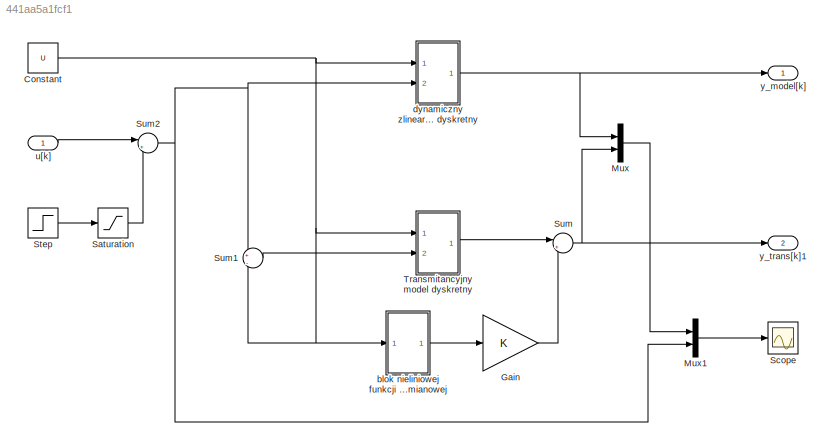
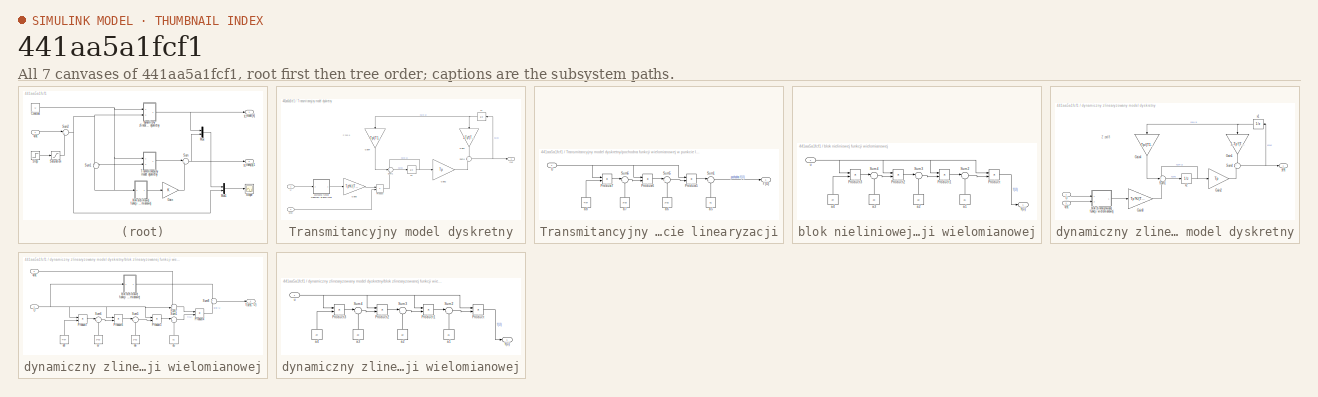
[diagram: thumbnail index - all 7 canvases of the model, root first then tree order]
MODEL slx_441aa5a1fcf1
KIND model
BLOCK [Constant] Constant
  Value = U
BLOCK [Gain] Gain
  Gain = K
  OutDataTypeStr = Inherit: Inherit via internal rule
  ParamDataTypeStr = Inherit: Inherit via internal rule
  SaturateOnIntegerOverflow = off
BLOCK [Mux] Mux
  DisplayOption = bar
  Inputs = 2
  Ports = [2, 1]
BLOCK [Mux] Mux1
  DisplayOption = bar
  Inputs = 2
  Ports = [2, 1]
BLOCK [Saturate] Saturation
  InputPortMap = u0
  LowerLimit = -1
  Ports = [1, 1]
  UpperLimit = 1
BLOCK [Scope] Scope
  Floating = off
  NumInputPorts = 1
  Ports = [1]
  ShowLegends = off
  YMax = 7
  YMin = 0
  ZoomMode = yonly
BLOCK [Step] Step
  After = U
  SampleTime = 0
  Time = 250
BLOCK [Sum] Sum
  IconShape = round
  InputSameDT = off
  Inputs = |++
  OutDataTypeStr = Inherit: Inherit via internal rule
  Ports = [2, 1]
  SaturateOnIntegerOverflow = off
BLOCK [Sum] Sum1
  IconShape = round
  InputSameDT = off
  Inputs = +|-
  OutDataTypeStr = Inherit: Inherit via internal rule
  Ports = [2, 1]
  SaturateOnIntegerOverflow = off
BLOCK [Sum] Sum2
  IconShape = round
  InputSameDT = off
  Inputs = |++
  OutDataTypeStr = Inherit: Inherit via internal rule
  Ports = [2, 1]
  SaturateOnIntegerOverflow = off
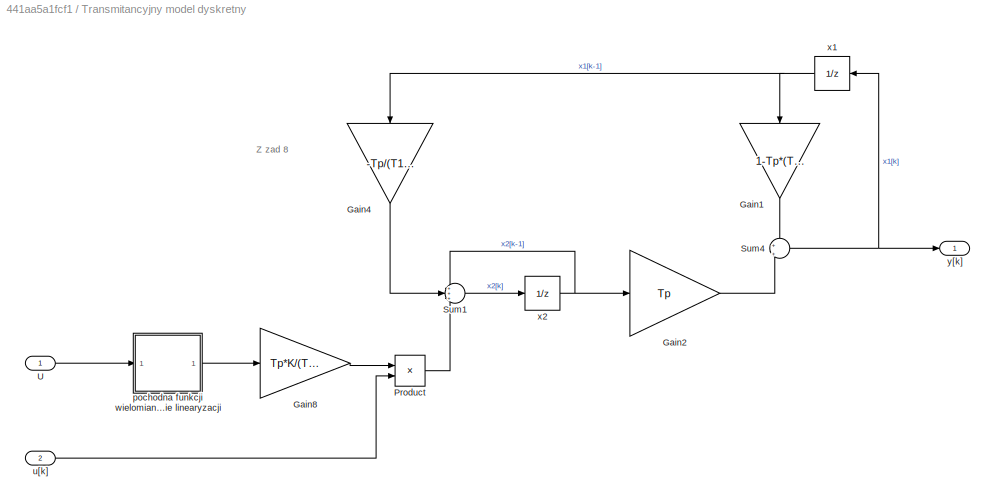
BLOCK [SubSystem] Transmitancyjny model dyskretny
  Ports = [2, 1]
  RequestExecContextInheritance = off
BLOCK [Gain] Transmitancyjny model dyskretny/Gain1
  Gain = 1-Tp*(T1+T2)/(T1*T2)
  OutDataTypeStr = Inherit: Inherit via internal rule
  ParamDataTypeStr = Inherit: Inherit via internal rule
  SaturateOnIntegerOverflow = off
BLOCK [Gain] Transmitancyjny model dyskretny/Gain2
  Gain = Tp
  OutDataTypeStr = Inherit: Inherit via internal rule
  ParamDataTypeStr = Inherit: Inherit via internal rule
  SaturateOnIntegerOverflow = off
BLOCK [Gain] Transmitancyjny model dyskretny/Gain4
  Gain = -Tp/(T1*T2)
  OutDataTypeStr = Inherit: Inherit via internal rule
  ParamDataTypeStr = Inherit: Inherit via internal rule
  SaturateOnIntegerOverflow = off
BLOCK [Gain] Transmitancyjny model dyskretny/Gain8
  Gain = Tp*K/(T1*T2)
  OutDataTypeStr = Inherit: Inherit via internal rule
  ParamDataTypeStr = Inherit: Inherit via internal rule
  SaturateOnIntegerOverflow = off
BLOCK [Product] Transmitancyjny model dyskretny/Product
  InputSameDT = off
  OutDataTypeStr = Inherit: Inherit via internal rule
  Ports = [2, 1]
  RndMeth = Floor
  SaturateOnIntegerOverflow = off
BLOCK [Sum] Transmitancyjny model dyskretny/Sum1
  IconShape = round
  InputSameDT = off
  Inputs = +++
  OutDataTypeStr = Inherit: Inherit via internal rule
  Ports = [3, 1]
  SaturateOnIntegerOverflow = off
BLOCK [Sum] Transmitancyjny model dyskretny/Sum4
  IconShape = round
  InputSameDT = off
  Inputs = +|+
  OutDataTypeStr = Inherit: Inherit via internal rule
  Ports = [2, 1]
  SaturateOnIntegerOverflow = off
BLOCK [Inport] Transmitancyjny model dyskretny/U
  IconDisplay = Port number
BLOCK [SubSystem] Transmitancyjny model dyskretny/pochodna funkcji wielomianowej w punkcie linearyzacji
  Ports = [1, 1]
  RequestExecContextInheritance = off
BLOCK [Product] Transmitancyjny model dyskretny/pochodna funkcji wielomianowej w punkcie linearyzacji/Product5
  InputSameDT = off
  OutDataTypeStr = Inherit: Inherit via internal rule
  Ports = [2, 1]
  RndMeth = Floor
  SaturateOnIntegerOverflow = off
BLOCK [Product] Transmitancyjny model dyskretny/pochodna funkcji wielomianowej w punkcie linearyzacji/Product6
  InputSameDT = off
  OutDataTypeStr = Inherit: Inherit via internal rule
  Ports = [2, 1]
  RndMeth = Floor
  SaturateOnIntegerOverflow = off
BLOCK [Product] Transmitancyjny model dyskretny/pochodna funkcji wielomianowej w punkcie linearyzacji/Product7
  InputSameDT = off
  OutDataTypeStr = Inherit: Inherit via internal rule
  Ports = [2, 1]
  RndMeth = Floor
  SaturateOnIntegerOverflow = off
BLOCK [Sum] Transmitancyjny model dyskretny/pochodna funkcji wielomianowej w punkcie linearyzacji/Sum1
  IconShape = round
  InputSameDT = off
  Inputs = |++
  OutDataTypeStr = Inherit: Inherit via internal rule
  Ports = [2, 1]
  SaturateOnIntegerOverflow = off
BLOCK [Sum] Transmitancyjny model dyskretny/pochodna funkcji wielomianowej w punkcie linearyzacji/Sum5
  IconShape = round
  InputSameDT = off
  Inputs = |++
  OutDataTypeStr = Inherit: Inherit via internal rule
  Ports = [2, 1]
  SaturateOnIntegerOverflow = off
BLOCK [Sum] Transmitancyjny model dyskretny/pochodna funkcji wielomianowej w punkcie linearyzacji/Sum6
  IconShape = round
  InputSameDT = off
  Inputs = |++
  OutDataTypeStr = Inherit: Inherit via internal rule
  Ports = [2, 1]
  SaturateOnIntegerOverflow = off
BLOCK [Inport] Transmitancyjny model dyskretny/pochodna funkcji wielomianowej w punkcie linearyzacji/U
  IconDisplay = Port number
BLOCK [Constant] Transmitancyjny model dyskretny/pochodna funkcji wielomianowej w punkcie linearyzacji/a5
  Value = a1
BLOCK [Constant] Transmitancyjny model dyskretny/pochodna funkcji wielomianowej w punkcie linearyzacji/a6
  Value = 2*a2
BLOCK [Constant] Transmitancyjny model dyskretny/pochodna funkcji wielomianowej w punkcie linearyzacji/a7
  Value = 3*a3
BLOCK [Constant] Transmitancyjny model dyskretny/pochodna funkcji wielomianowej w punkcie linearyzacji/a8
  Value = 4*a4
BLOCK [Outport] Transmitancyjny model dyskretny/pochodna funkcji wielomianowej w punkcie linearyzacji/f'(U)
  IconDisplay = Port number
BLOCK [Inport] Transmitancyjny model dyskretny/u[k]
  IconDisplay = Port number
  Port = 2
BLOCK [UnitDelay] Transmitancyjny model dyskretny/x1
  InitialCondition = x0(1)
  InputProcessing = Elements as channels (sample based)
  SampleTime = Tp
BLOCK [UnitDelay] Transmitancyjny model dyskretny/x2
  InitialCondition = x0(2)
  InputProcessing = Elements as channels (sample based)
  SampleTime = Tp
BLOCK [Outport] Transmitancyjny model dyskretny/y[k]
  IconDisplay = Port number
BLOCK [SubSystem] blok nieliniowej funkcji wielomianowej
  Ports = [1, 1]
  RequestExecContextInheritance = off
BLOCK [Product] blok nieliniowej funkcji wielomianowej/Product
  InputSameDT = off
  OutDataTypeStr = Inherit: Inherit via internal rule
  Ports = [2, 1]
  RndMeth = Floor
  SaturateOnIntegerOverflow = off
BLOCK [Product] blok nieliniowej funkcji wielomianowej/Product1
  InputSameDT = off
  OutDataTypeStr = Inherit: Inherit via internal rule
  Ports = [2, 1]
  RndMeth = Floor
  SaturateOnIntegerOverflow = off
BLOCK [Product] blok nieliniowej funkcji wielomianowej/Product2
  InputSameDT = off
  OutDataTypeStr = Inherit: Inherit via internal rule
  Ports = [2, 1]
  RndMeth = Floor
  SaturateOnIntegerOverflow = off
BLOCK [Product] blok nieliniowej funkcji wielomianowej/Product3
  InputSameDT = off
  OutDataTypeStr = Inherit: Inherit via internal rule
  Ports = [2, 1]
  RndMeth = Floor
  SaturateOnIntegerOverflow = off
BLOCK [Sum] blok nieliniowej funkcji wielomianowej/Sum2
  IconShape = round
  InputSameDT = off
  Inputs = |++
  OutDataTypeStr = Inherit: Inherit via internal rule
  Ports = [2, 1]
  SaturateOnIntegerOverflow = off
BLOCK [Sum] blok nieliniowej funkcji wielomianowej/Sum3
  IconShape = round
  InputSameDT = off
  Inputs = |++
  OutDataTypeStr = Inherit: Inherit via internal rule
  Ports = [2, 1]
  SaturateOnIntegerOverflow = off
BLOCK [Sum] blok nieliniowej funkcji wielomianowej/Sum4
  IconShape = round
  InputSameDT = off
  Inputs = |++
  OutDataTypeStr = Inherit: Inherit via internal rule
  Ports = [2, 1]
  SaturateOnIntegerOverflow = off
BLOCK [Constant] blok nieliniowej funkcji wielomianowej/a1
  Value = a1
BLOCK [Constant] blok nieliniowej funkcji wielomianowej/a2
  Value = a2
BLOCK [Constant] blok nieliniowej funkcji wielomianowej/a3
  Value = a3
BLOCK [Constant] blok nieliniowej funkcji wielomianowej/a4
  Value = a4
BLOCK [Outport] blok nieliniowej funkcji wielomianowej/f(u)
  IconDisplay = Port number
BLOCK [Inport] blok nieliniowej funkcji wielomianowej/u
  IconDisplay = Port number
BLOCK [SubSystem] dynamiczny zlinearyzowany model dyskretny
  Ports = [2, 1]
  RequestExecContextInheritance = off
BLOCK [Gain] dynamiczny zlinearyzowany model dyskretny/Gain1
  Gain = 1-Tp*(T1+T2)/(T1*T2)
  OutDataTypeStr = Inherit: Inherit via internal rule
  ParamDataTypeStr = Inherit: Inherit via internal rule
  SaturateOnIntegerOverflow = off
BLOCK [Gain] dynamiczny zlinearyzowany model dyskretny/Gain2
  Gain = Tp
  OutDataTypeStr = Inherit: Inherit via internal rule
  ParamDataTypeStr = Inherit: Inherit via internal rule
  SaturateOnIntegerOverflow = off
BLOCK [Gain] dynamiczny zlinearyzowany model dyskretny/Gain4
  Gain = -Tp/(T1*T2)
  OutDataTypeStr = Inherit: Inherit via internal rule
  ParamDataTypeStr = Inherit: Inherit via internal rule
  SaturateOnIntegerOverflow = off
BLOCK [Gain] dynamiczny zlinearyzowany model dyskretny/Gain8
  Gain = Tp*K/(T1*T2)
  OutDataTypeStr = Inherit: Inherit via internal rule
  ParamDataTypeStr = Inherit: Inherit via internal rule
  SaturateOnIntegerOverflow = off
BLOCK [Sum] dynamiczny zlinearyzowany model dyskretny/Sum1
  IconShape = round
  InputSameDT = off
  Inputs = +++
  OutDataTypeStr = Inherit: Inherit via internal rule
  Ports = [3, 1]
  SaturateOnIntegerOverflow = off
BLOCK [Sum] dynamiczny zlinearyzowany model dyskretny/Sum4
  IconShape = round
  InputSameDT = off
  Inputs = +|+
  OutDataTypeStr = Inherit: Inherit via internal rule
  Ports = [2, 1]
  SaturateOnIntegerOverflow = off
BLOCK [Inport] dynamiczny zlinearyzowany model dyskretny/U
  IconDisplay = Port number
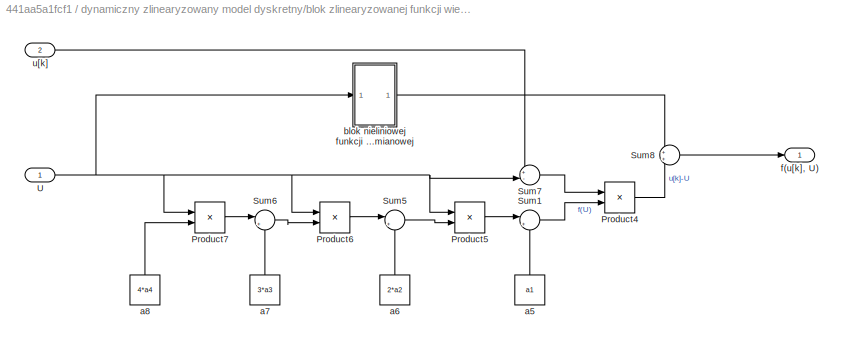
BLOCK [SubSystem] dynamiczny zlinearyzowany model dyskretny/blok zlinearyzowanej funkcji wielomianowej
  Ports = [2, 1]
  RequestExecContextInheritance = off
BLOCK [Product] dynamiczny zlinearyzowany model dyskretny/blok zlinearyzowanej funkcji wielomianowej/Product4
  InputSameDT = off
  OutDataTypeStr = Inherit: Inherit via internal rule
  Ports = [2, 1]
  RndMeth = Floor
  SaturateOnIntegerOverflow = off
BLOCK [Product] dynamiczny zlinearyzowany model dyskretny/blok zlinearyzowanej funkcji wielomianowej/Product5
  InputSameDT = off
  OutDataTypeStr = Inherit: Inherit via internal rule
  Ports = [2, 1]
  RndMeth = Floor
  SaturateOnIntegerOverflow = off
BLOCK [Product] dynamiczny zlinearyzowany model dyskretny/blok zlinearyzowanej funkcji wielomianowej/Product6
  InputSameDT = off
  OutDataTypeStr = Inherit: Inherit via internal rule
  Ports = [2, 1]
  RndMeth = Floor
  SaturateOnIntegerOverflow = off
BLOCK [Product] dynamiczny zlinearyzowany model dyskretny/blok zlinearyzowanej funkcji wielomianowej/Product7
  InputSameDT = off
  OutDataTypeStr = Inherit: Inherit via internal rule
  Ports = [2, 1]
  RndMeth = Floor
  SaturateOnIntegerOverflow = off
BLOCK [Sum] dynamiczny zlinearyzowany model dyskretny/blok zlinearyzowanej funkcji wielomianowej/Sum1
  IconShape = round
  InputSameDT = off
  Inputs = |++
  OutDataTypeStr = Inherit: Inherit via internal rule
  Ports = [2, 1]
  SaturateOnIntegerOverflow = off
BLOCK [Sum] dynamiczny zlinearyzowany model dyskretny/blok zlinearyzowanej funkcji wielomianowej/Sum5
  IconShape = round
  InputSameDT = off
  Inputs = |++
  OutDataTypeStr = Inherit: Inherit via internal rule
  Ports = [2, 1]
  SaturateOnIntegerOverflow = off
BLOCK [Sum] dynamiczny zlinearyzowany model dyskretny/blok zlinearyzowanej funkcji wielomianowej/Sum6
  IconShape = round
  InputSameDT = off
  Inputs = |++
  OutDataTypeStr = Inherit: Inherit via internal rule
  Ports = [2, 1]
  SaturateOnIntegerOverflow = off
BLOCK [Sum] dynamiczny zlinearyzowany model dyskretny/blok zlinearyzowanej funkcji wielomianowej/Sum7
  IconShape = round
  InputSameDT = off
  Inputs = +-|
  OutDataTypeStr = Inherit: Inherit via internal rule
  Ports = [2, 1]
  SaturateOnIntegerOverflow = off
BLOCK [Sum] dynamiczny zlinearyzowany model dyskretny/blok zlinearyzowanej funkcji wielomianowej/Sum8
  IconShape = round
  InputSameDT = off
  OutDataTypeStr = Inherit: Inherit via internal rule
  Ports = [2, 1]
  SaturateOnIntegerOverflow = off
BLOCK [Inport] dynamiczny zlinearyzowany model dyskretny/blok zlinearyzowanej funkcji wielomianowej/U
  IconDisplay = Port number
BLOCK [Constant] dynamiczny zlinearyzowany model dyskretny/blok zlinearyzowanej funkcji wielomianowej/a5
  Value = a1
BLOCK [Constant] dynamiczny zlinearyzowany model dyskretny/blok zlinearyzowanej funkcji wielomianowej/a6
  Value = 2*a2
BLOCK [Constant] dynamiczny zlinearyzowany model dyskretny/blok zlinearyzowanej funkcji wielomianowej/a7
  Value = 3*a3
BLOCK [Constant] dynamiczny zlinearyzowany model dyskretny/blok zlinearyzowanej funkcji wielomianowej/a8
  Value = 4*a4
BLOCK [SubSystem] dynamiczny zlinearyzowany model dyskretny/blok zlinearyzowanej funkcji wielomianowej/blok nieliniowej funkcji wielomianowej
  Ports = [1, 1]
  RequestExecContextInheritance = off
BLOCK [Product] dynamiczny zlinearyzowany model dyskretny/blok zlinearyzowanej funkcji wielomianowej/blok nieliniowej funkcji wielomianowej/Product
  InputSameDT = off
  OutDataTypeStr = Inherit: Inherit via internal rule
  Ports = [2, 1]
  RndMeth = Floor
  SaturateOnIntegerOverflow = off
BLOCK [Product] dynamiczny zlinearyzowany model dyskretny/blok zlinearyzowanej funkcji wielomianowej/blok nieliniowej funkcji wielomianowej/Product1
  InputSameDT = off
  OutDataTypeStr = Inherit: Inherit via internal rule
  Ports = [2, 1]
  RndMeth = Floor
  SaturateOnIntegerOverflow = off
BLOCK [Product] dynamiczny zlinearyzowany model dyskretny/blok zlinearyzowanej funkcji wielomianowej/blok nieliniowej funkcji wielomianowej/Product2
  InputSameDT = off
  OutDataTypeStr = Inherit: Inherit via internal rule
  Ports = [2, 1]
  RndMeth = Floor
  SaturateOnIntegerOverflow = off
BLOCK [Product] dynamiczny zlinearyzowany model dyskretny/blok zlinearyzowanej funkcji wielomianowej/blok nieliniowej funkcji wielomianowej/Product3
  InputSameDT = off
  OutDataTypeStr = Inherit: Inherit via internal rule
  Ports = [2, 1]
  RndMeth = Floor
  SaturateOnIntegerOverflow = off
BLOCK [Sum] dynamiczny zlinearyzowany model dyskretny/blok zlinearyzowanej funkcji wielomianowej/blok nieliniowej funkcji wielomianowej/Sum2
  IconShape = round
  InputSameDT = off
  Inputs = |++
  OutDataTypeStr = Inherit: Inherit via internal rule
  Ports = [2, 1]
  SaturateOnIntegerOverflow = off
BLOCK [Sum] dynamiczny zlinearyzowany model dyskretny/blok zlinearyzowanej funkcji wielomianowej/blok nieliniowej funkcji wielomianowej/Sum3
  IconShape = round
  InputSameDT = off
  Inputs = |++
  OutDataTypeStr = Inherit: Inherit via internal rule
  Ports = [2, 1]
  SaturateOnIntegerOverflow = off
BLOCK [Sum] dynamiczny zlinearyzowany model dyskretny/blok zlinearyzowanej funkcji wielomianowej/blok nieliniowej funkcji wielomianowej/Sum4
  IconShape = round
  InputSameDT = off
  Inputs = |++
  OutDataTypeStr = Inherit: Inherit via internal rule
  Ports = [2, 1]
  SaturateOnIntegerOverflow = off
BLOCK [Constant] dynamiczny zlinearyzowany model dyskretny/blok zlinearyzowanej funkcji wielomianowej/blok nieliniowej funkcji wielomianowej/a1
  Value = a1
BLOCK [Constant] dynamiczny zlinearyzowany model dyskretny/blok zlinearyzowanej funkcji wielomianowej/blok nieliniowej funkcji wielomianowej/a2
  Value = a2
BLOCK [Constant] dynamiczny zlinearyzowany model dyskretny/blok zlinearyzowanej funkcji wielomianowej/blok nieliniowej funkcji wielomianowej/a3
  Value = a3
BLOCK [Constant] dynamiczny zlinearyzowany model dyskretny/blok zlinearyzowanej funkcji wielomianowej/blok nieliniowej funkcji wielomianowej/a4
  Value = a4
BLOCK [Outport] dynamiczny zlinearyzowany model dyskretny/blok zlinearyzowanej funkcji wielomianowej/blok nieliniowej funkcji wielomianowej/f(u)
  IconDisplay = Port number
BLOCK [Inport] dynamiczny zlinearyzowany model dyskretny/blok zlinearyzowanej funkcji wielomianowej/blok nieliniowej funkcji wielomianowej/u
  IconDisplay = Port number
BLOCK [Outport] dynamiczny zlinearyzowany model dyskretny/blok zlinearyzowanej funkcji wielomianowej/f(u[k], U)
  IconDisplay = Port number
BLOCK [Inport] dynamiczny zlinearyzowany model dyskretny/blok zlinearyzowanej funkcji wielomianowej/u[k]
  IconDisplay = Port number
  Port = 2
BLOCK [Inport] dynamiczny zlinearyzowany model dyskretny/u[k]
  IconDisplay = Port number
  Port = 2
BLOCK [UnitDelay] dynamiczny zlinearyzowany model dyskretny/x1
  InitialCondition = x0(1)
  InputProcessing = Elements as channels (sample based)
  SampleTime = Tp
BLOCK [UnitDelay] dynamiczny zlinearyzowany model dyskretny/x2
  InitialCondition = x0(2)
  InputProcessing = Elements as channels (sample based)
  SampleTime = Tp
BLOCK [Outport] dynamiczny zlinearyzowany model dyskretny/y[k]
  IconDisplay = Port number
BLOCK [Inport] u[k]
  IconDisplay = Port number
BLOCK [Outport] y_model[k]
  IconDisplay = Port number
BLOCK [Outport] y_trans[k]1
  IconDisplay = Port number
  Port = 2
ANNOTATION Transmitancyjny model dyskretny: Z zad 8
ANNOTATION dynamiczny zlinearyzowany model dyskretny: Z zad 8
NET Constant:1 -> Sum1:2, Transmitancyjny model dyskretny:1, blok nieliniowej funkcji wielomianowej:1, dynamiczny zlinearyzowany model dyskretny:1
LINE Gain:1 -> Sum:2
LINE Mux1:1 -> Scope:1
LINE Mux:1 -> Mux1:1
LINE Saturation:1 -> Sum2:2
LINE Step:1 -> Saturation:1
LINE Sum1:1 -> Transmitancyjny model dyskretny:2
NET Sum2:1 -> Mux1:2, Sum1:1, dynamiczny zlinearyzowany model dyskretny:2
NET Sum:1 -> Mux:2, y_trans[k]1:1
LINE Transmitancyjny model dyskretny/Gain1:1 -> Transmitancyjny model dyskretny/Sum4:1
LINE Transmitancyjny model dyskretny/Gain2:1 -> Transmitancyjny model dyskretny/Sum4:2
LINE Transmitancyjny model dyskretny/Gain4:1 -> Transmitancyjny model dyskretny/Sum1:2
LINE Transmitancyjny model dyskretny/Gain8:1 -> Transmitancyjny model dyskretny/Product:1
LINE Transmitancyjny model dyskretny/Product:1 -> Transmitancyjny model dyskretny/Sum1:3
LINE Transmitancyjny model dyskretny/Sum1:1 -> Transmitancyjny model dyskretny/x2:1
NET Transmitancyjny model dyskretny/Sum4:1 -> Transmitancyjny model dyskretny/x1:1, Transmitancyjny model dyskretny/y[k]:1
LINE Transmitancyjny model dyskretny/U:1 -> Transmitancyjny model dyskretny/pochodna funkcji wielomianowej w punkcie linearyzacji:1
LINE Transmitancyjny model dyskretny/pochodna funkcji wielomianowej w punkcie linearyzacji/Product5:1 -> Transmitancyjny model dyskretny/pochodna funkcji wielomianowej w punkcie linearyzacji/Sum1:1
LINE Transmitancyjny model dyskretny/pochodna funkcji wielomianowej w punkcie linearyzacji/Product6:1 -> Transmitancyjny model dyskretny/pochodna funkcji wielomianowej w punkcie linearyzacji/Sum5:1
LINE Transmitancyjny model dyskretny/pochodna funkcji wielomianowej w punkcie linearyzacji/Product7:1 -> Transmitancyjny model dyskretny/pochodna funkcji wielomianowej w punkcie linearyzacji/Sum6:1
LINE Transmitancyjny model dyskretny/pochodna funkcji wielomianowej w punkcie linearyzacji/Sum1:1 -> Transmitancyjny model dyskretny/pochodna funkcji wielomianowej w punkcie linearyzacji/f'(U):1
LINE Transmitancyjny model dyskretny/pochodna funkcji wielomianowej w punkcie linearyzacji/Sum5:1 -> Transmitancyjny model dyskretny/pochodna funkcji wielomianowej w punkcie linearyzacji/Product5:2
LINE Transmitancyjny model dyskretny/pochodna funkcji wielomianowej w punkcie linearyzacji/Sum6:1 -> Transmitancyjny model dyskretny/pochodna funkcji wielomianowej w punkcie linearyzacji/Product6:2
NET Transmitancyjny model dyskretny/pochodna funkcji wielomianowej w punkcie linearyzacji/U:1 -> Transmitancyjny model dyskretny/pochodna funkcji wielomianowej w punkcie linearyzacji/Product5:1, Transmitancyjny model dyskretny/pochodna funkcji wielomianowej w punkcie linearyzacji/Product6:1, Transmitancyjny model dyskretny/pochodna funkcji wielomianowej w punkcie linearyzacji/Product7:1
LINE Transmitancyjny model dyskretny/pochodna funkcji wielomianowej w punkcie linearyzacji/a5:1 -> Transmitancyjny model dyskretny/pochodna funkcji wielomianowej w punkcie linearyzacji/Sum1:2
LINE Transmitancyjny model dyskretny/pochodna funkcji wielomianowej w punkcie linearyzacji/a6:1 -> Transmitancyjny model dyskretny/pochodna funkcji wielomianowej w punkcie linearyzacji/Sum5:2
LINE Transmitancyjny model dyskretny/pochodna funkcji wielomianowej w punkcie linearyzacji/a7:1 -> Transmitancyjny model dyskretny/pochodna funkcji wielomianowej w punkcie linearyzacji/Sum6:2
LINE Transmitancyjny model dyskretny/pochodna funkcji wielomianowej w punkcie linearyzacji/a8:1 -> Transmitancyjny model dyskretny/pochodna funkcji wielomianowej w punkcie linearyzacji/Product7:2
LINE Transmitancyjny model dyskretny/pochodna funkcji wielomianowej w punkcie linearyzacji:1 -> Transmitancyjny model dyskretny/Gain8:1
LINE Transmitancyjny model dyskretny/u[k]:1 -> Transmitancyjny model dyskretny/Product:2
NET Transmitancyjny model dyskretny/x1:1 -> Transmitancyjny model dyskretny/Gain1:1, Transmitancyjny model dyskretny/Gain4:1
NET Transmitancyjny model dyskretny/x2:1 -> Transmitancyjny model dyskretny/Gain2:1, Transmitancyjny model dyskretny/Sum1:1
LINE Transmitancyjny model dyskretny:1 -> Sum:1
LINE blok nieliniowej funkcji wielomianowej/Product1:1 -> blok nieliniowej funkcji wielomianowej/Sum2:1
LINE blok nieliniowej funkcji wielomianowej/Product2:1 -> blok nieliniowej funkcji wielomianowej/Sum3:1
LINE blok nieliniowej funkcji wielomianowej/Product3:1 -> blok nieliniowej funkcji wielomianowej/Sum4:1
LINE blok nieliniowej funkcji wielomianowej/Product:1 -> blok nieliniowej funkcji wielomianowej/f(u):1
LINE blok nieliniowej funkcji wielomianowej/Sum2:1 -> blok nieliniowej funkcji wielomianowej/Product:2
LINE blok nieliniowej funkcji wielomianowej/Sum3:1 -> blok nieliniowej funkcji wielomianowej/Product1:2
LINE blok nieliniowej funkcji wielomianowej/Sum4:1 -> blok nieliniowej funkcji wielomianowej/Product2:2
LINE blok nieliniowej funkcji wielomianowej/a1:1 -> blok nieliniowej funkcji wielomianowej/Sum2:2
LINE blok nieliniowej funkcji wielomianowej/a2:1 -> blok nieliniowej funkcji wielomianowej/Sum3:2
LINE blok nieliniowej funkcji wielomianowej/a3:1 -> blok nieliniowej funkcji wielomianowej/Sum4:2
LINE blok nieliniowej funkcji wielomianowej/a4:1 -> blok nieliniowej funkcji wielomianowej/Product3:2
NET blok nieliniowej funkcji wielomianowej/u:1 -> blok nieliniowej funkcji wielomianowej/Product1:1, blok nieliniowej funkcji wielomianowej/Product2:1, blok nieliniowej funkcji wielomianowej/Product3:1, blok nieliniowej funkcji wielomianowej/Product:1
LINE blok nieliniowej funkcji wielomianowej:1 -> Gain:1
LINE dynamiczny zlinearyzowany model dyskretny/Gain1:1 -> dynamiczny zlinearyzowany model dyskretny/Sum4:1
LINE dynamiczny zlinearyzowany model dyskretny/Gain2:1 -> dynamiczny zlinearyzowany model dyskretny/Sum4:2
LINE dynamiczny zlinearyzowany model dyskretny/Gain4:1 -> dynamiczny zlinearyzowany model dyskretny/Sum1:2
LINE dynamiczny zlinearyzowany model dyskretny/Gain8:1 -> dynamiczny zlinearyzowany model dyskretny/Sum1:3
LINE dynamiczny zlinearyzowany model dyskretny/Sum1:1 -> dynamiczny zlinearyzowany model dyskretny/x2:1
NET dynamiczny zlinearyzowany model dyskretny/Sum4:1 -> dynamiczny zlinearyzowany model dyskretny/x1:1, dynamiczny zlinearyzowany model dyskretny/y[k]:1
LINE dynamiczny zlinearyzowany model dyskretny/U:1 -> dynamiczny zlinearyzowany model dyskretny/blok zlinearyzowanej funkcji wielomianowej:1
LINE dynamiczny zlinearyzowany model dyskretny/blok zlinearyzowanej funkcji wielomianowej/Product4:1 -> dynamiczny zlinearyzowany model dyskretny/blok zlinearyzowanej funkcji wielomianowej/Sum8:2
LINE dynamiczny zlinearyzowany model dyskretny/blok zlinearyzowanej funkcji wielomianowej/Product5:1 -> dynamiczny zlinearyzowany model dyskretny/blok zlinearyzowanej funkcji wielomianowej/Sum1:1
LINE dynamiczny zlinearyzowany model dyskretny/blok zlinearyzowanej funkcji wielomianowej/Product6:1 -> dynamiczny zlinearyzowany model dyskretny/blok zlinearyzowanej funkcji wielomianowej/Sum5:1
LINE dynamiczny zlinearyzowany model dyskretny/blok zlinearyzowanej funkcji wielomianowej/Product7:1 -> dynamiczny zlinearyzowany model dyskretny/blok zlinearyzowanej funkcji wielomianowej/Sum6:1
LINE dynamiczny zlinearyzowany model dyskretny/blok zlinearyzowanej funkcji wielomianowej/Sum1:1 -> dynamiczny zlinearyzowany model dyskretny/blok zlinearyzowanej funkcji wielomianowej/Product4:2
LINE dynamiczny zlinearyzowany model dyskretny/blok zlinearyzowanej funkcji wielomianowej/Sum5:1 -> dynamiczny zlinearyzowany model dyskretny/blok zlinearyzowanej funkcji wielomianowej/Product5:2
LINE dynamiczny zlinearyzowany model dyskretny/blok zlinearyzowanej funkcji wielomianowej/Sum6:1 -> dynamiczny zlinearyzowany model dyskretny/blok zlinearyzowanej funkcji wielomianowej/Product6:2
LINE dynamiczny zlinearyzowany model dyskretny/blok zlinearyzowanej funkcji wielomianowej/Sum7:1 -> dynamiczny zlinearyzowany model dyskretny/blok zlinearyzowanej funkcji wielomianowej/Product4:1
LINE dynamiczny zlinearyzowany model dyskretny/blok zlinearyzowanej funkcji wielomianowej/Sum8:1 -> dynamiczny zlinearyzowany model dyskretny/blok zlinearyzowanej funkcji wielomianowej/f(u[k], U):1
NET dynamiczny zlinearyzowany model dyskretny/blok zlinearyzowanej funkcji wielomianowej/U:1 -> dynamiczny zlinearyzowany model dyskretny/blok zlinearyzowanej funkcji wielomianowej/Product5:1, dynamiczny zlinearyzowany model dyskretny/blok zlinearyzowanej funkcji wielomianowej/Product6:1, dynamiczny zlinearyzowany model dyskretny/blok zlinearyzowanej funkcji wielomianowej/Product7:1, dynamiczny zlinearyzowany model dyskretny/blok zlinearyzowanej funkcji wielomianowej/Sum7:2, dynamiczny zlinearyzowany model dyskretny/blok zlinearyzowanej funkcji wielomianowej/blok nieliniowej funkcji wielomianowej:1
LINE dynamiczny zlinearyzowany model dyskretny/blok zlinearyzowanej funkcji wielomianowej/a5:1 -> dynamiczny zlinearyzowany model dyskretny/blok zlinearyzowanej funkcji wielomianowej/Sum1:2
LINE dynamiczny zlinearyzowany model dyskretny/blok zlinearyzowanej funkcji wielomianowej/a6:1 -> dynamiczny zlinearyzowany model dyskretny/blok zlinearyzowanej funkcji wielomianowej/Sum5:2
LINE dynamiczny zlinearyzowany model dyskretny/blok zlinearyzowanej funkcji wielomianowej/a7:1 -> dynamiczny zlinearyzowany model dyskretny/blok zlinearyzowanej funkcji wielomianowej/Sum6:2
LINE dynamiczny zlinearyzowany model dyskretny/blok zlinearyzowanej funkcji wielomianowej/a8:1 -> dynamiczny zlinearyzowany model dyskretny/blok zlinearyzowanej funkcji wielomianowej/Product7:2
LINE dynamiczny zlinearyzowany model dyskretny/blok zlinearyzowanej funkcji wielomianowej/blok nieliniowej funkcji wielomianowej/Product1:1 -> dynamiczny zlinearyzowany model dyskretny/blok zlinearyzowanej funkcji wielomianowej/blok nieliniowej funkcji wielomianowej/Sum2:1
LINE dynamiczny zlinearyzowany model dyskretny/blok zlinearyzowanej funkcji wielomianowej/blok nieliniowej funkcji wielomianowej/Product2:1 -> dynamiczny zlinearyzowany model dyskretny/blok zlinearyzowanej funkcji wielomianowej/blok nieliniowej funkcji wielomianowej/Sum3:1
LINE dynamiczny zlinearyzowany model dyskretny/blok zlinearyzowanej funkcji wielomianowej/blok nieliniowej funkcji wielomianowej/Product3:1 -> dynamiczny zlinearyzowany model dyskretny/blok zlinearyzowanej funkcji wielomianowej/blok nieliniowej funkcji wielomianowej/Sum4:1
LINE dynamiczny zlinearyzowany model dyskretny/blok zlinearyzowanej funkcji wielomianowej/blok nieliniowej funkcji wielomianowej/Product:1 -> dynamiczny zlinearyzowany model dyskretny/blok zlinearyzowanej funkcji wielomianowej/blok nieliniowej funkcji wielomianowej/f(u):1
LINE dynamiczny zlinearyzowany model dyskretny/blok zlinearyzowanej funkcji wielomianowej/blok nieliniowej funkcji wielomianowej/Sum2:1 -> dynamiczny zlinearyzowany model dyskretny/blok zlinearyzowanej funkcji wielomianowej/blok nieliniowej funkcji wielomianowej/Product:2
LINE dynamiczny zlinearyzowany model dyskretny/blok zlinearyzowanej funkcji wielomianowej/blok nieliniowej funkcji wielomianowej/Sum3:1 -> dynamiczny zlinearyzowany model dyskretny/blok zlinearyzowanej funkcji wielomianowej/blok nieliniowej funkcji wielomianowej/Product1:2
LINE dynamiczny zlinearyzowany model dyskretny/blok zlinearyzowanej funkcji wielomianowej/blok nieliniowej funkcji wielomianowej/Sum4:1 -> dynamiczny zlinearyzowany model dyskretny/blok zlinearyzowanej funkcji wielomianowej/blok nieliniowej funkcji wielomianowej/Product2:2
LINE dynamiczny zlinearyzowany model dyskretny/blok zlinearyzowanej funkcji wielomianowej/blok nieliniowej funkcji wielomianowej/a1:1 -> dynamiczny zlinearyzowany model dyskretny/blok zlinearyzowanej funkcji wielomianowej/blok nieliniowej funkcji wielomianowej/Sum2:2
LINE dynamiczny zlinearyzowany model dyskretny/blok zlinearyzowanej funkcji wielomianowej/blok nieliniowej funkcji wielomianowej/a2:1 -> dynamiczny zlinearyzowany model dyskretny/blok zlinearyzowanej funkcji wielomianowej/blok nieliniowej funkcji wielomianowej/Sum3:2
LINE dynamiczny zlinearyzowany model dyskretny/blok zlinearyzowanej funkcji wielomianowej/blok nieliniowej funkcji wielomianowej/a3:1 -> dynamiczny zlinearyzowany model dyskretny/blok zlinearyzowanej funkcji wielomianowej/blok nieliniowej funkcji wielomianowej/Sum4:2
LINE dynamiczny zlinearyzowany model dyskretny/blok zlinearyzowanej funkcji wielomianowej/blok nieliniowej funkcji wielomianowej/a4:1 -> dynamiczny zlinearyzowany model dyskretny/blok zlinearyzowanej funkcji wielomianowej/blok nieliniowej funkcji wielomianowej/Product3:2
NET dynamiczny zlinearyzowany model dyskretny/blok zlinearyzowanej funkcji wielomianowej/blok nieliniowej funkcji wielomianowej/u:1 -> dynamiczny zlinearyzowany model dyskretny/blok zlinearyzowanej funkcji wielomianowej/blok nieliniowej funkcji wielomianowej/Product1:1, dynamiczny zlinearyzowany model dyskretny/blok zlinearyzowanej funkcji wielomianowej/blok nieliniowej funkcji wielomianowej/Product2:1, dynamiczny zlinearyzowany model dyskretny/blok zlinearyzowanej funkcji wielomianowej/blok nieliniowej funkcji wielomianowej/Product3:1, dynamiczny zlinearyzowany model dyskretny/blok zlinearyzowanej funkcji wielomianowej/blok nieliniowej funkcji wielomianowej/Product:1
LINE dynamiczny zlinearyzowany model dyskretny/blok zlinearyzowanej funkcji wielomianowej/blok nieliniowej funkcji wielomianowej:1 -> dynamiczny zlinearyzowany model dyskretny/blok zlinearyzowanej funkcji wielomianowej/Sum8:1
LINE dynamiczny zlinearyzowany model dyskretny/blok zlinearyzowanej funkcji wielomianowej/u[k]:1 -> dynamiczny zlinearyzowany model dyskretny/blok zlinearyzowanej funkcji wielomianowej/Sum7:1
LINE dynamiczny zlinearyzowany model dyskretny/blok zlinearyzowanej funkcji wielomianowej:1 -> dynamiczny zlinearyzowany model dyskretny/Gain8:1
LINE dynamiczny zlinearyzowany model dyskretny/u[k]:1 -> dynamiczny zlinearyzowany model dyskretny/blok zlinearyzowanej funkcji wielomianowej:2
NET dynamiczny zlinearyzowany model dyskretny/x1:1 -> dynamiczny zlinearyzowany model dyskretny/Gain1:1, dynamiczny zlinearyzowany model dyskretny/Gain4:1
NET dynamiczny zlinearyzowany model dyskretny/x2:1 -> dynamiczny zlinearyzowany model dyskretny/Gain2:1, dynamiczny zlinearyzowany model dyskretny/Sum1:1
NET dynamiczny zlinearyzowany model dyskretny:1 -> Mux:1, y_model[k]:1
LINE u[k]:1 -> Sum2:1
note: NET lines group one-source signal fan-out (src -> all destinations, sorted); 1:1 wires keep LINE
